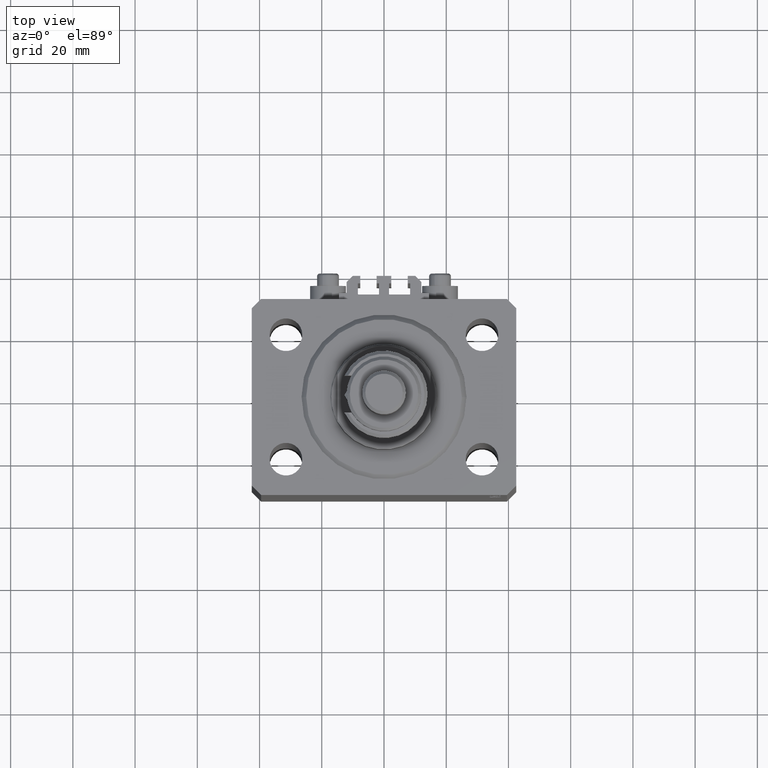
[diagram: clean part render]
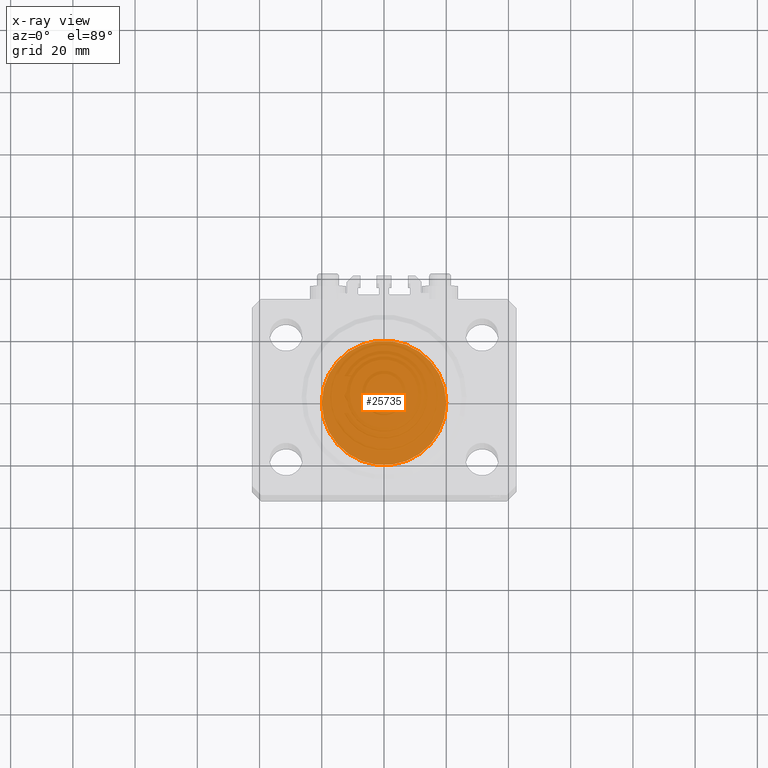
[diagram: x-ray — body ghosted, one internal face saturated and labeled with its STEP entity id]
A machine part, top view, then the same camera in x-ray: the body is ghosted and one INTERNAL B-rep face — a face not visible from any outside direction — is saturated and labeled: STEP entity #25735.
In plain terms, the highlighted planar face has unit normal (0, 0, 1).
Its self-contained STEP definition (entity closure, byte-faithful):
#4510 = CIRCLE ( 'NONE', #37737, 20.00000000000000000 ) ;
#5341 = VERTEX_POINT ( 'NONE', #44694 ) ;
#6604 = VERTEX_POINT ( 'NONE', #48958 ) ;
#11846 = DIRECTION ( 'NONE',  ( 1.000000000000000000, 0.000000000000000000, 0.000000000000000000 ) ) ;
#13683 = DIRECTION ( 'NONE',  ( 0.000000000000000000, 0.000000000000000000, 1.000000000000000000 ) ) ;
#15652 = CARTESIAN_POINT ( 'NONE',  ( 0.000000000000000000, 0.000000000000000000, 0.000000000000000000 ) ) ;
#20427 = ORIENTED_EDGE ( 'NONE', *, *, #33092, .F. ) ;
#21665 = CARTESIAN_POINT ( 'NONE',  ( 0.000000000000000000, 0.000000000000000000, 0.000000000000000000 ) ) ;
#21921 = FACE_OUTER_BOUND ( 'NONE', #42058, .T. ) ;
#25477 = PLANE ( 'NONE',  #31925 ) ;
#25735 = ADVANCED_FACE ( 'NONE', ( #21921 ), #25477, .F. ) ;
#29523 = DIRECTION ( 'NONE',  ( 1.000000000000000000, 0.000000000000000000, -0.000000000000000000 ) ) ;
#31925 = AXIS2_PLACEMENT_3D ( 'NONE', #21665, #48564, #29523 ) ;
#33092 = EDGE_CURVE ( 'NONE', #5341, #6604, #4510, .T. ) ;
#33836 = CIRCLE ( 'NONE', #47601, 20.00000000000000000 ) ;
#37037 = CARTESIAN_POINT ( 'NONE',  ( 0.000000000000000000, 0.000000000000000000, 0.000000000000000000 ) ) ;
#37737 = AXIS2_PLACEMENT_3D ( 'NONE', #15652, #46628, #11846 ) ;
#38037 = EDGE_CURVE ( 'NONE', #6604, #5341, #33836, .T. ) ;
#42025 = ORIENTED_EDGE ( 'NONE', *, *, #38037, .F. ) ;
#42058 = EDGE_LOOP ( 'NONE', ( #42025, #20427 ) ) ;
#44694 = CARTESIAN_POINT ( 'NONE',  ( 20.00000000000000000, 2.449293598294706513E-15, 0.000000000000000000 ) ) ;
#44916 = DIRECTION ( 'NONE',  ( 1.000000000000000000, 0.000000000000000000, 0.000000000000000000 ) ) ;
#46628 = DIRECTION ( 'NONE',  ( 0.000000000000000000, 0.000000000000000000, 1.000000000000000000 ) ) ;
#47601 = AXIS2_PLACEMENT_3D ( 'NONE', #37037, #13683, #44916 ) ;
#48564 = DIRECTION ( 'NONE',  ( 0.000000000000000000, 0.000000000000000000, 1.000000000000000000 ) ) ;
#48958 = CARTESIAN_POINT ( 'NONE',  ( -20.00000000000000000, 0.000000000000000000, 0.000000000000000000 ) ) ;